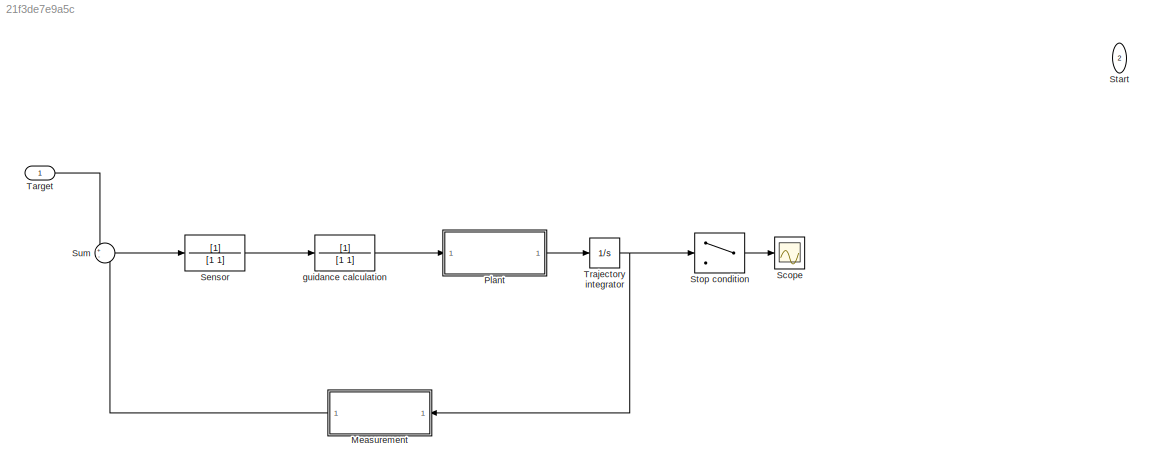
MODEL slx_21f3de7e9a5c
KIND model
CONFIG AbsTol = auto
CONFIG EnableMultiTasking = off
CONFIG FixedStep = auto
CONFIG MaxStep = auto
CONFIG MinStep = auto
CONFIG RelTol = 1e-3
CONFIG SampleTimeConstraint = Unconstrained
CONFIG SolverName = VariableStepAuto
CONFIG StartTime = 0.0
CONFIG StopTime = 10.0
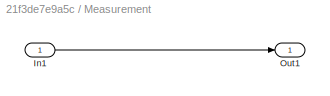
BLOCK [SubSystem] Measurement
BLOCK [Inport] Measurement/In1
BLOCK [Outport] Measurement/Out1
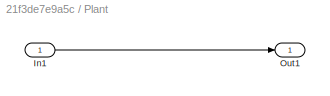
BLOCK [SubSystem] Plant
BLOCK [Inport] Plant/In1
BLOCK [Outport] Plant/Out1
BLOCK [Scope] Scope
  Floating = off
  NumInputPorts = 1
  ScopeSpecificationString = Simulink.scopes.TimeScopeBlockCfg('CurrentConfiguration', extmgr.ConfigurationSet(extmgr.Configuration('Core','General UI',true),extmgr.Configuration('Core','Source UI',true),extmgr.Configuration('Sources','WiredSimulink',true),extmgr.Configuration('Visuals','Time Domain',true),extmgr.Configuration('Tools','Plot Navigation',true),extmgr.Configuration('Tools','Measurements',true)),'Version','2024b'...<+1ch>
BLOCK [TransferFcn] Sensor
  Denominator = [1 1]
BLOCK [Inport] Start
  NameLocation = left
  Port = 2
BLOCK [Switch] Stop condition
  Criteria = u2 > Threshold
  InputSameDT = off
  SaturateOnIntegerOverflow = off
  Threshold = r_min
BLOCK [Sum] Sum
  Inputs = +-
BLOCK [Inport] Target
BLOCK [Integrator] Trajectory integrator
BLOCK [TransferFcn] guidance calculation
  Denominator = [1 1]
LINE Measurement/In1:1 -> Measurement/Out1:1
LINE Measurement:1 -> Sum:2
LINE Plant/In1:1 -> Plant/Out1:1
LINE Plant:1 -> Trajectory integrator:1
LINE Sensor:1 -> guidance calculation:1
LINE Stop condition:1 -> Scope:1
LINE Sum:1 -> Sensor:1
LINE Target:1 -> Sum:1
NET Trajectory integrator:1 -> Measurement:1, Stop condition:2
LINE guidance calculation:1 -> Plant:1
note: NET lines group one-source signal fan-out (src -> all destinations, sorted); 1:1 wires keep LINE
